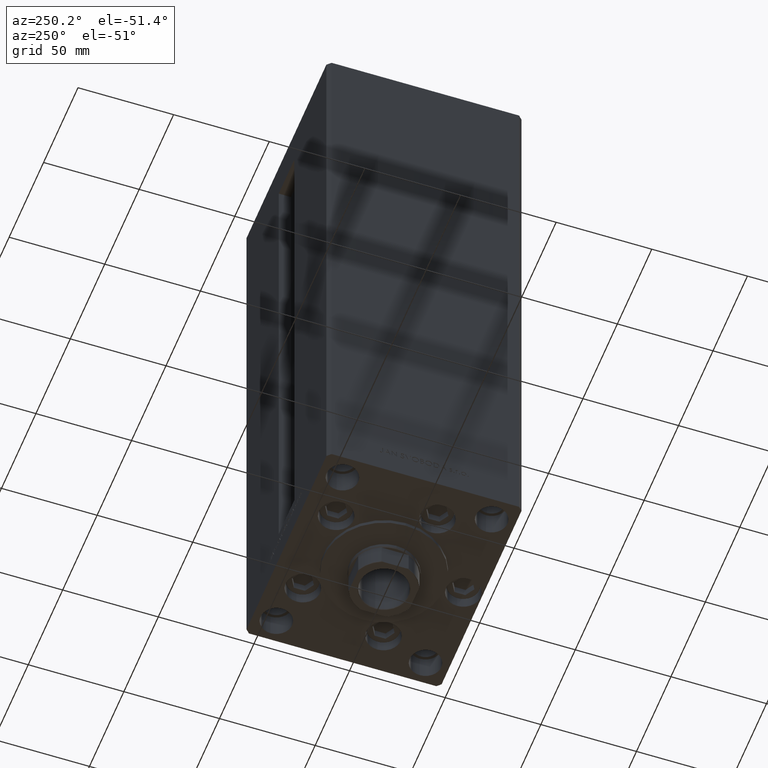
[diagram: clean part render]
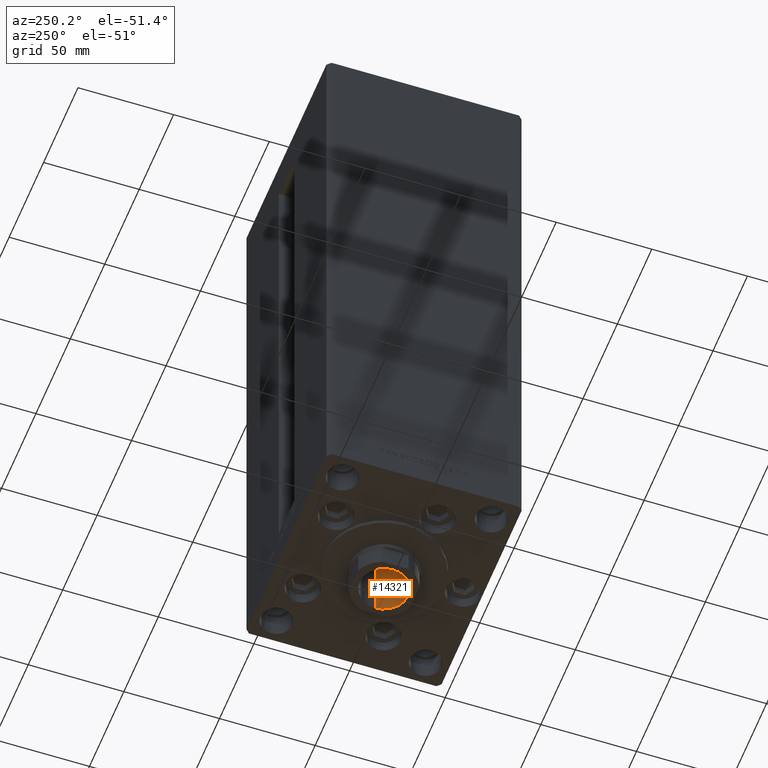
[diagram: same view with one face highlighted and labeled with its STEP entity id]
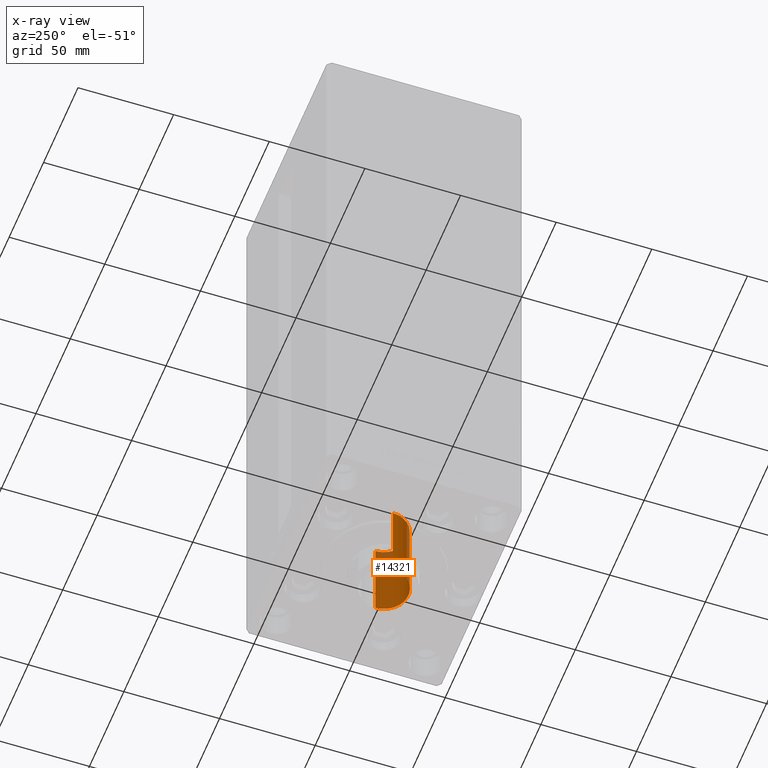
[diagram: x-ray of the same camera — body ghosted, the highlighted face saturated]
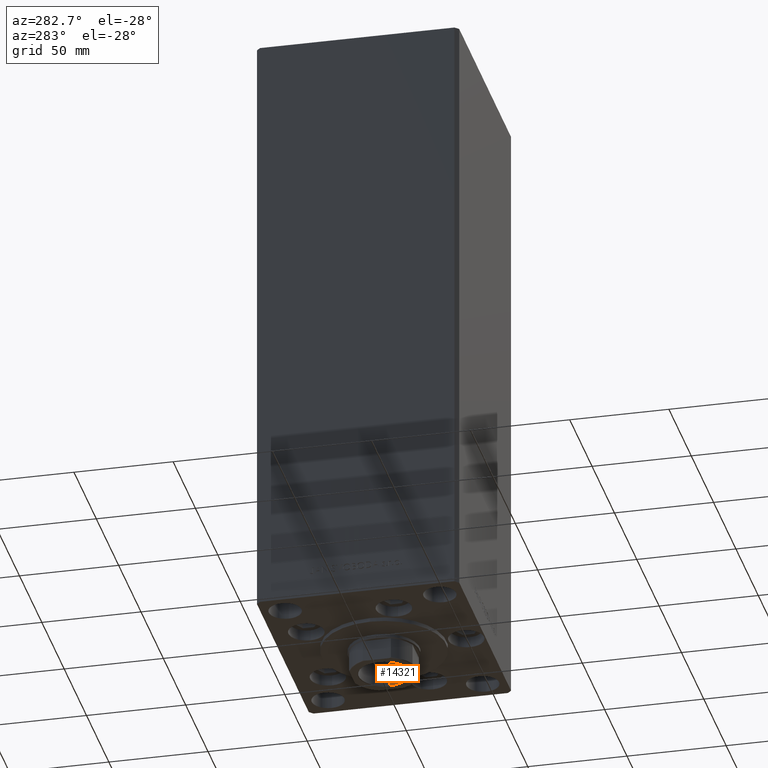
[diagram: same view with one face highlighted and labeled with its STEP entity id]
A machine part, auxiliary view. The second image highlights one B-rep face of the part: STEP entity #14321.
The next image is the same camera in x-ray: the body ghosted, the highlighted face saturated — about 11% of this face is hidden behind the body in this view.
A second angle (auxiliary view) of the same face is appended — the face is thin or edge-on in the first view.
In plain terms, the highlighted cylindrical surface (edge-blend (fillet) strip) has radius 12.75 mm, axis along (0, 0, -1).
Its self-contained STEP definition (entity closure, byte-faithful):
#5474 = AXIS2_PLACEMENT_3D ( 'NONE', #35803, #25107, #6219 ) ;
#6219 = DIRECTION ( 'NONE',  ( 1.000000000000000000, 0.000000000000000000, 0.000000000000000000 ) ) ;
#6232 = EDGE_CURVE ( 'NONE', #34365, #6921, #15781, .T. ) ;
#6775 = CARTESIAN_POINT ( 'NONE',  ( 12.74999999999999112, 0.000000000000000000, 244.2500000000000284 ) ) ;
#6921 = VERTEX_POINT ( 'NONE', #6775 ) ;
#7240 = CARTESIAN_POINT ( 'NONE',  ( -12.74999999999999112, 1.561424668912874125E-15, 244.2500000000000284 ) ) ;
#7506 = CARTESIAN_POINT ( 'NONE',  ( 12.74999999999999467, 0.000000000000000000, 289.2500000000000000 ) ) ;
#8948 = DIRECTION ( 'NONE',  ( -0.000000000000000000, -0.000000000000000000, 1.000000000000000000 ) ) ;
#10728 = DIRECTION ( 'NONE',  ( -0.000000000000000000, -0.000000000000000000, 1.000000000000000000 ) ) ;
#11161 = LINE ( 'NONE', #36789, #11980 ) ;
#11980 = VECTOR ( 'NONE', #26343, 1000.000000000000000 ) ;
#12921 = FACE_OUTER_BOUND ( 'NONE', #31018, .T. ) ;
#13569 = DIRECTION ( 'NONE',  ( 1.000000000000000000, 0.000000000000000000, 0.000000000000000000 ) ) ;
#14321 = ADVANCED_FACE ( 'NONE', ( #12921 ), #21132, .F. ) ;
#14465 = LINE ( 'NONE', #7506, #47325 ) ;
#15353 = EDGE_CURVE ( 'NONE', #34365, #26265, #11161, .T. ) ;
#15781 = CIRCLE ( 'NONE', #5474, 12.74999999999999112 ) ;
#16872 = CIRCLE ( 'NONE', #39920, 12.74999999999999467 ) ;
#18491 = CARTESIAN_POINT ( 'NONE',  ( -12.74999999999999467, 1.561424668912874519E-15, 288.9499999999999318 ) ) ;
#19874 = AXIS2_PLACEMENT_3D ( 'NONE', #43246, #8948, #24112 ) ;
#21132 = CYLINDRICAL_SURFACE ( 'NONE', #19874, 12.74999999999999467 ) ;
#21883 = CARTESIAN_POINT ( 'NONE',  ( 12.74999999999999467, 0.000000000000000000, 288.9499999999999318 ) ) ;
#22862 = ORIENTED_EDGE ( 'NONE', *, *, #42754, .F. ) ;
#23673 = VERTEX_POINT ( 'NONE', #21883 ) ;
#24112 = DIRECTION ( 'NONE',  ( 1.000000000000000000, 0.000000000000000000, 0.000000000000000000 ) ) ;
#25107 = DIRECTION ( 'NONE',  ( -0.000000000000000000, -0.000000000000000000, 1.000000000000000000 ) ) ;
#26265 = VERTEX_POINT ( 'NONE', #18491 ) ;
#26343 = DIRECTION ( 'NONE',  ( -0.000000000000000000, -0.000000000000000000, 1.000000000000000000 ) ) ;
#29730 = ORIENTED_EDGE ( 'NONE', *, *, #15353, .T. ) ;
#31018 = EDGE_LOOP ( 'NONE', ( #41076, #29730, #36856, #22862 ) ) ;
#31412 = EDGE_CURVE ( 'NONE', #26265, #23673, #16872, .T. ) ;
#32458 = CARTESIAN_POINT ( 'NONE',  ( 0.000000000000000000, 0.000000000000000000, 288.9499999999999318 ) ) ;
#32945 = DIRECTION ( 'NONE',  ( 0.000000000000000000, 0.000000000000000000, 1.000000000000000000 ) ) ;
#34365 = VERTEX_POINT ( 'NONE', #7240 ) ;
#35803 = CARTESIAN_POINT ( 'NONE',  ( 0.000000000000000000, 0.000000000000000000, 244.2500000000000284 ) ) ;
#36789 = CARTESIAN_POINT ( 'NONE',  ( -12.74999999999999467, 1.561424668912874519E-15, 289.2500000000000000 ) ) ;
#36856 = ORIENTED_EDGE ( 'NONE', *, *, #31412, .T. ) ;
#39920 = AXIS2_PLACEMENT_3D ( 'NONE', #32458, #32945, #13569 ) ;
#41076 = ORIENTED_EDGE ( 'NONE', *, *, #6232, .F. ) ;
#42754 = EDGE_CURVE ( 'NONE', #6921, #23673, #14465, .T. ) ;
#43246 = CARTESIAN_POINT ( 'NONE',  ( 0.000000000000000000, 0.000000000000000000, 289.2500000000000000 ) ) ;
#47325 = VECTOR ( 'NONE', #10728, 1000.000000000000000 ) ;